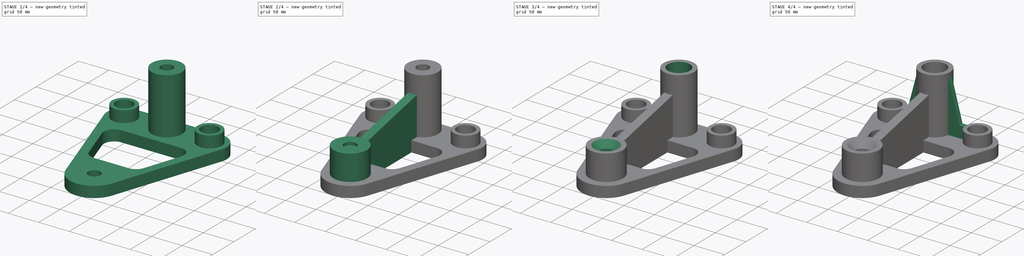
[diagram: build sequence overview — one tinted view per stage of 4, left to right]
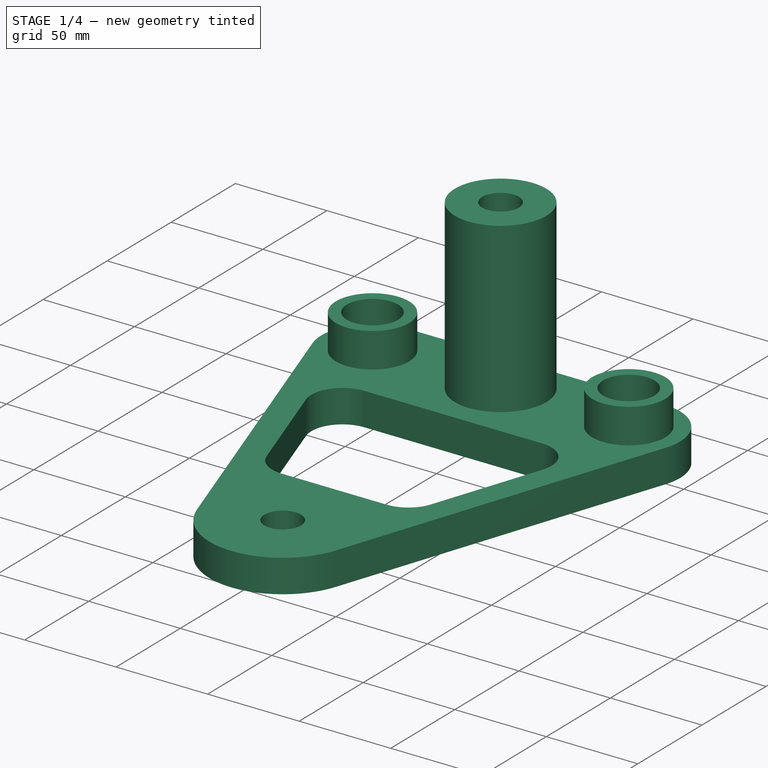
[diagram: stage 1 of 4 — iso view after this stage's code; geometry added in this stage tinted green]
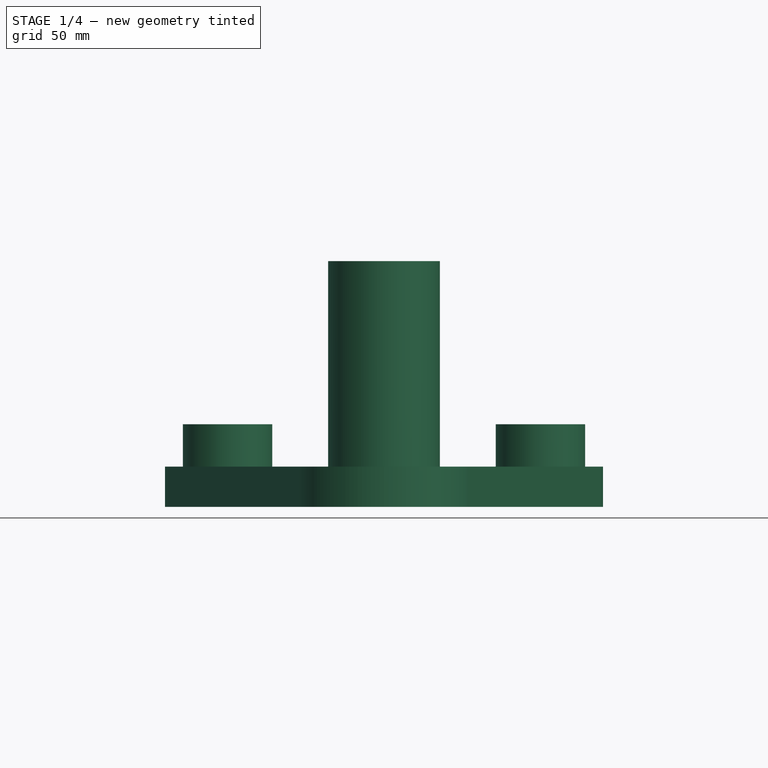
[diagram: stage 1 of 4 — front view after this stage's code; geometry added in this stage tinted green]
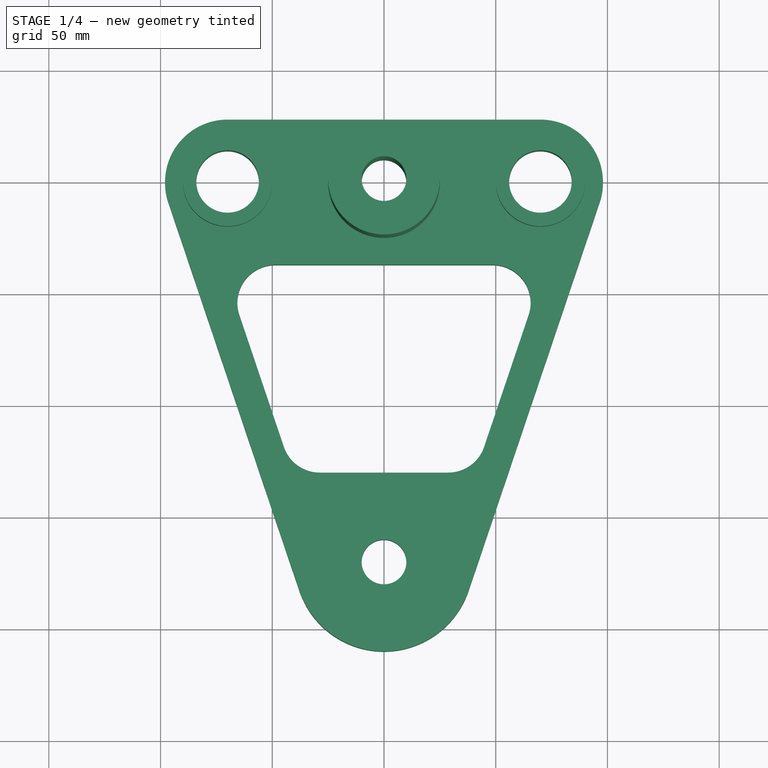
[diagram: stage 1 of 4 — top view after this stage's code; geometry added in this stage tinted green]
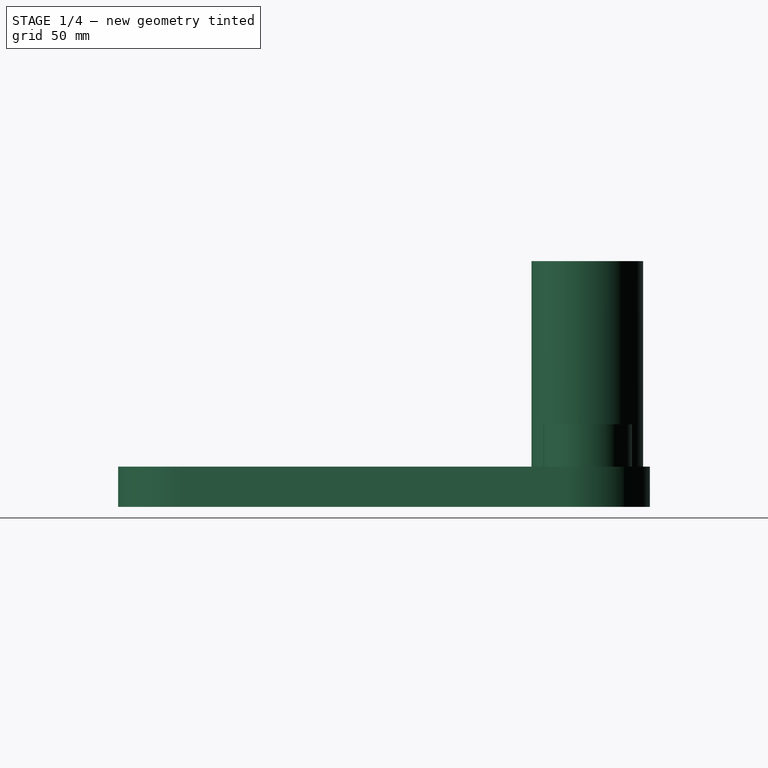
[diagram: stage 1 of 4 — right view after this stage's code; geometry added in this stage tinted green]
FCSTD DOCUMENT  (FreeCAD 1.1R42180 (Git))
Label: 24WC-22-Jack_Bracket
License: Creative Commons Attribution-NonCommercial-ShareAlike 4.0
LicenseURL: https://creativecommons.org/licenses/by-nc-sa/4.0/
objects: PartDesign::Pad×8, Sketcher::SketchObject×6, PartDesign::Hole×2, App::Point×1, PartDesign::Mirrored×1, PartDesign::Body×1, App::TextDocument×1
note: 45 computed .brp shape members not serialized (recipe doc carries the construction recipe); baked Part::Feature solids carry a one-line shape summary decoded from their .brp

FEATURE [App::Point] Origin001  label="Origine"
  Role = Origin
FEATURE [Sketcher::SketchObject] Sketch
  ArcFitTolerance = 1e-06
  AttachmentSupport = -> [Origin]
  ExternalTypes = [0]
  FullyConstrained = true
  MakeInternals = false
  MapMode = 5
  sketch-geometry (18):
    g0: LineSegment StartX=-70 StartY=28 StartZ=0 EndX=70 EndY=28 EndZ=0
    g1: ArcOfCircle CenterX=70 CenterY=3.9e-15 CenterZ=0 NormalX=0 NormalY=0 NormalZ=1 AngleXU=0 Radius=28 StartAngle=5.9579 EndAngle=7.85398
    g2: LineSegment StartX=96.5316 StartY=-8.94832 StartZ=0 EndX=37.9023 EndY=-182.783 EndZ=0
    g3: ArcOfCircle CenterX=-5.2e-15 CenterY=-170 CenterZ=0 NormalX=0 NormalY=0 NormalZ=1 AngleXU=0 Radius=40 StartAngle=3.46688 EndAngle=5.9579
    g4: LineSegment StartX=-37.9023 StartY=-182.783 StartZ=0 EndX=-96.5316 EndY=-8.94832 EndZ=0
    g5: ArcOfCircle CenterX=-70 CenterY=8e-16 CenterZ=0 NormalX=0 NormalY=0 NormalZ=1 AngleXU=0 Radius=28 StartAngle=1.5708 EndAngle=3.46688
    g6: Circle CenterX=-70 CenterY=8e-16 CenterZ=0 NormalX=0 NormalY=0 NormalZ=1 AngleXU=0 Radius=14
    g7: Circle CenterX=70 CenterY=3.9e-15 CenterZ=0 NormalX=0 NormalY=0 NormalZ=1 AngleXU=0 Radius=14
    g8: Circle CenterX=-5.2e-15 CenterY=-170 CenterZ=0 NormalX=0 NormalY=0 NormalZ=1 AngleXU=0 Radius=10
    g9: LineSegment StartX=-48.6214 StartY=-37 StartZ=0 EndX=48.6214 EndY=-37 EndZ=0
    g10: ArcOfCircle CenterX=48.6214 CenterY=-54 CenterZ=0 NormalX=0 NormalY=0 NormalZ=1 AngleXU=0 Radius=17 StartAngle=5.9579 EndAngle=7.85398
    g11: LineSegment StartX=64.7299 StartY=-59.4329 StartZ=0 EndX=44.831 EndY=-118.433 EndZ=0
    g12: LineSegment StartX=-44.831 StartY=-118.433 StartZ=0 EndX=-64.7299 EndY=-59.4329 EndZ=0
    g13: ArcOfCircle CenterX=-48.6214 CenterY=-54 CenterZ=0 NormalX=0 NormalY=0 NormalZ=1 AngleXU=0 Radius=17 StartAngle=1.5708 EndAngle=3.46688
    g14: ArcOfCircle CenterX=-28.7225 CenterY=-113 CenterZ=0 NormalX=0 NormalY=0 NormalZ=1 AngleXU=0 Radius=17 StartAngle=3.46688 EndAngle=4.71239
    g15: LineSegment StartX=-28.7225 StartY=-130 StartZ=0 EndX=28.7225 EndY=-130 EndZ=0
    g16: ArcOfCircle CenterX=28.7225 CenterY=-113 CenterZ=0 NormalX=0 NormalY=0 NormalZ=1 AngleXU=0 Radius=17 StartAngle=4.71239 EndAngle=5.9579
    g17: Circle CenterX=0 CenterY=0 CenterZ=0 NormalX=0 NormalY=0 NormalZ=1 AngleXU=0 Radius=10
  constraints (40):
    c: Horizontal(g0)
    c: Tangent(g0,g1) = 1.5708
    c: Tangent(g1,g2) = 1.5708
    c: Tangent(g2,g3) = 1.5708
    c: Tangent(g3,g4) = 1.5708
    c: Tangent(g4,g5) = 1.5708
    c: Tangent(g5,g0) = 1.5708
    c: Symmetric(g5,g1,g-1)
    c: Radius(g3) = 40
    c: Radius(g1) = 28
    c: Equal(g1,g5)
    c: DistanceX(g5,g1) = 140
    c: DistanceY(g3,g5) = 170
    c: PointOnObject(g3,g-2)
    c: Diameter(g6) = 28
    c: Coincident(g7,g1)
    c: Equal(g6,g7)
    c: Coincident(g8,g3)
    c: Diameter(g8) = 20
    c: Horizontal(g9)
    c: Tangent(g9,g10) = 1.5708
    c: Tangent(g10,g11) = 1.5708
    c: Tangent(g12,g13) = 1.5708
    c: Tangent(g12,g14) = 1.5708
    c: Tangent(g14,g15) = -1.5708
    c: Tangent(g15,g16) = -1.5708
    c: DistanceY(g3,g14) = 40
    c: Horizontal(g15)
    c: DistanceY(g9,g5) = 37
    c: Radius(g13) = 17
    c: Equal(g10,g16)
    c: Tangent(g16,g11) = 1.5708
    c: Tangent(g13,g9) = 1.5708
    c: Parallel(g11,g2)
    c: Distance(g10,g2) = 14
    c: Symmetric(g13,g10,g-2)
    c: Symmetric(g14,g16,g-2)
    c: Coincident(g6,g5)
    c: Diameter(g17) = 20
    c: Coincident(g-1,g17)
FEATURE [PartDesign::Pad] Pad
  Direction = (0,0,1)
  Length = 18
  Length2 = 10
  Profile = -> Sketch
  ReferenceAxis = -> Sketch [N_Axis]
  Refine = true
  Suppressed = false
  Type = 0
FEATURE [Sketcher::SketchObject] Sketch001
  ArcFitTolerance = 1e-06
  AttachmentSupport = -> [Pad]
  ExternalGeometry = -> [Pad]
  ExternalTypes = [0,0,0,0]
  FullyConstrained = true
  MakeInternals = false
  MapMode = 5
  Placement = pos=(0,0,0) rot=(1,0,0;3.14159rad)
  sketch-geometry (4):
    g0: Circle CenterX=0 CenterY=170 CenterZ=0 NormalX=0 NormalY=0 NormalZ=1 AngleXU=0 Radius=27.5
    g1: Circle CenterX=0 CenterY=0 CenterZ=0 NormalX=0 NormalY=0 NormalZ=1 AngleXU=0 Radius=25
    g2: Circle CenterX=-70 CenterY=0 CenterZ=0 NormalX=0 NormalY=0 NormalZ=1 AngleXU=0 Radius=20
    g3: Circle CenterX=70 CenterY=0 CenterZ=0 NormalX=0 NormalY=0 NormalZ=1 AngleXU=0 Radius=20
  constraints (8):
    c: Diameter(g0) = 55
    c: Coincident(g0,g-3)
    c: Diameter(g1) = 50
    c: Coincident(g1,g-1)
    c: Diameter(g2) = 40
    c: Coincident(g2,g-4)
    c: Diameter(g3) = 40
    c: Coincident(g3,g-6)
FEATURE [PartDesign::Pad] Pad001
  BaseFeature = -> Pad
  Direction = (0,0,-1)
  Length = 37
  Length2 = 10
  Profile = -> Sketch001 [Edge3,Edge6,Edge4,Edge8]
  ReferenceAxis = -> Sketch001 [N_Axis]
  Refine = true
  Reversed = true
  Suppressed = false
  Type = 0
FEATURE [PartDesign::Pad] Pad002
  BaseFeature = -> Pad001
  Direction = (0,0,-1)
  Length = 110
  Length2 = 10
  Profile = -> Sketch001 [Edge7,Edge2]
  ReferenceAxis = -> Sketch001 [N_Axis]
  Refine = true
  Reversed = true
  Suppressed = false
  Type = 0
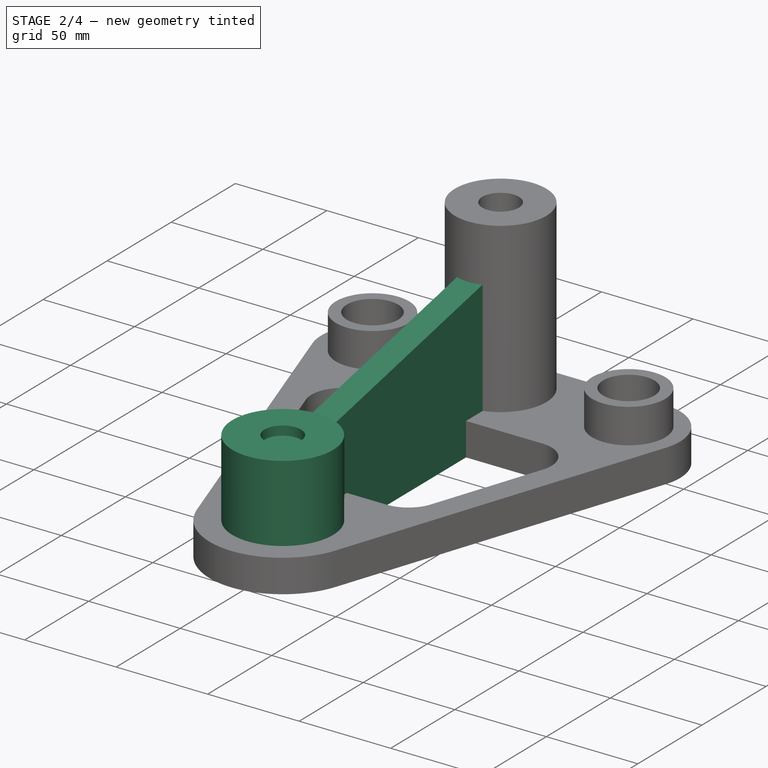
[diagram: stage 2 of 4 — iso view after this stage's code; geometry added in this stage tinted green]
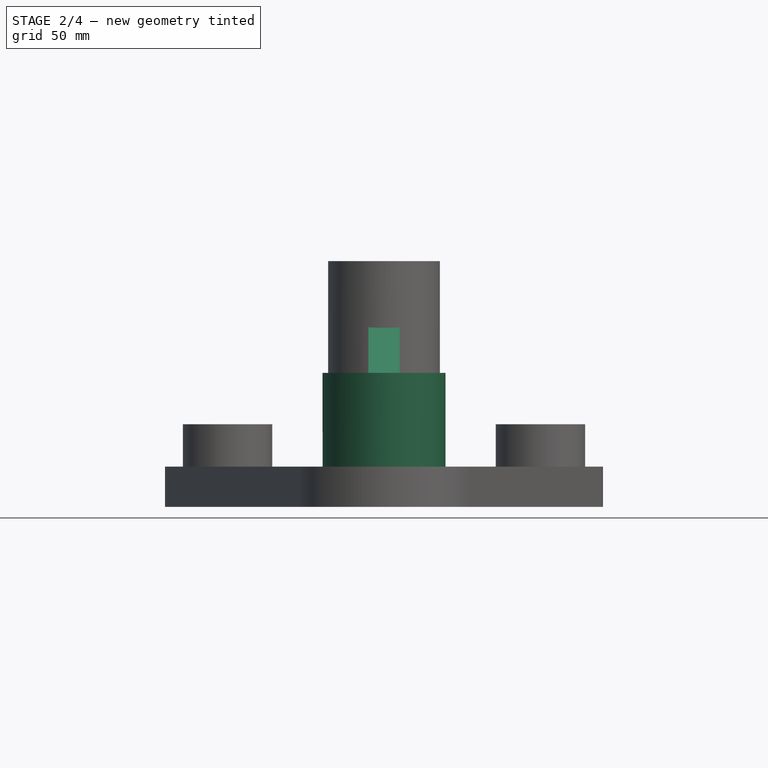
[diagram: stage 2 of 4 — front view after this stage's code; geometry added in this stage tinted green]
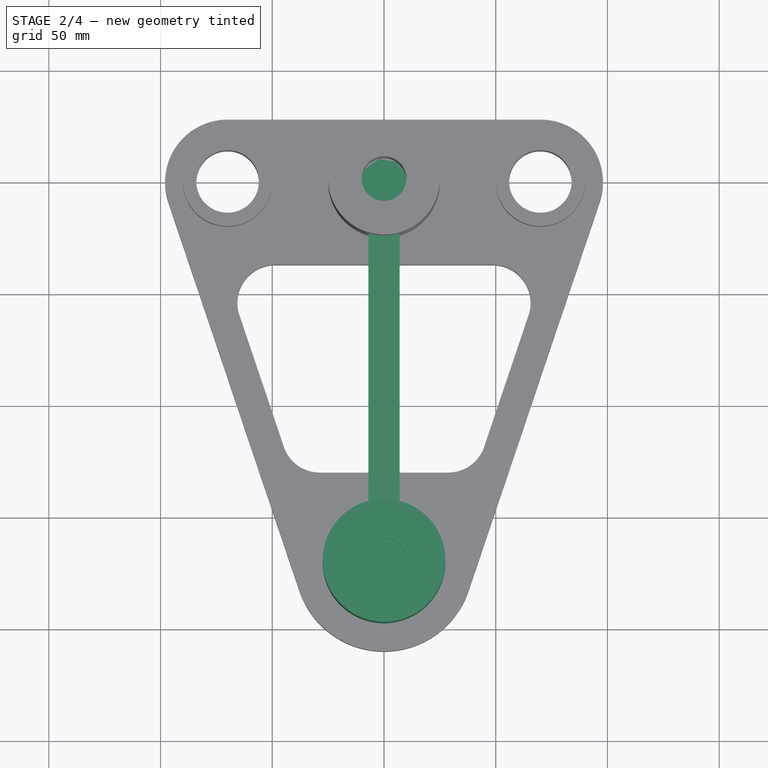
[diagram: stage 2 of 4 — top view after this stage's code; geometry added in this stage tinted green]
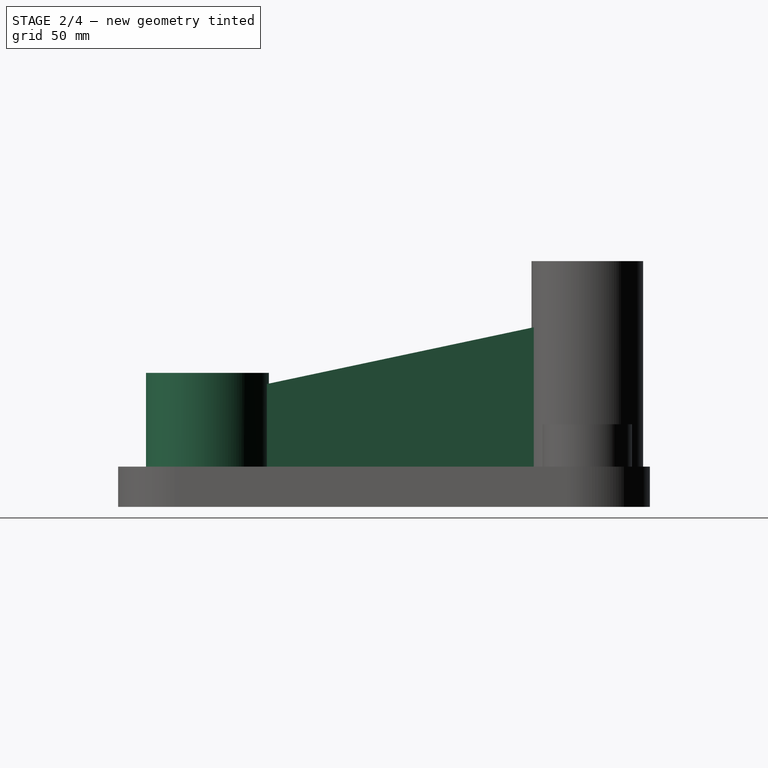
[diagram: stage 2 of 4 — right view after this stage's code; geometry added in this stage tinted green]
FEATURE [PartDesign::Pad] Pad003
  BaseFeature = -> Pad002
  Direction = (0,0,-1)
  Length = 60
  Length2 = 10
  Profile = -> Sketch001 [Edge1,Edge5]
  ReferenceAxis = -> Sketch001 [N_Axis]
  Refine = true
  Reversed = true
  Suppressed = false
  Type = 0
FEATURE [Sketcher::SketchObject] Sketch002
  ArcFitTolerance = 1e-06
  AttachmentSupport = -> [Origin]
  ExternalGeometry = -> [Pad003]
  ExternalTypes = [0,0]
  FullyConstrained = true
  MakeInternals = false
  MapMode = 5
  sketch-geometry (4):
    g0: LineSegment StartX=-7 StartY=-24 StartZ=0 EndX=-7 EndY=-143.406 EndZ=0
    g1: LineSegment StartX=-7 StartY=-143.406 StartZ=0 EndX=7 EndY=-143.406 EndZ=0
    g2: LineSegment StartX=7 StartY=-143.406 StartZ=0 EndX=7 EndY=-24 EndZ=0
    g3: LineSegment StartX=7 StartY=-24 StartZ=0 EndX=-7 EndY=-24 EndZ=0
  constraints (12):
    c: Coincident(g0,g1)
    c: Coincident(g1,g2)
    c: Coincident(g2,g3)
    c: Coincident(g3,g0)
    c: Vertical(g0)
    c: Vertical(g2)
    c: Horizontal(g1)
    c: Horizontal(g3)
    c: PointOnObject(g0,g-3)
    c: PointOnObject(g1,g-4)
    c: Distance(g2,g0) = 14
    c: PointOnObject(g0,g-4)
FEATURE [PartDesign::Pad] Pad004
  BaseFeature = -> Pad003
  Direction = (0,0,1)
  Length = 55
  Length2 = 10
  Profile = -> Sketch002
  ReferenceAxis = -> Sketch002 [N_Axis]
  Refine = true
  Suppressed = false
  Type = 0
FEATURE [Sketcher::SketchObject] Sketch003
  ArcFitTolerance = 1e-06
  AttachmentSupport = -> [Origin]
  ExternalGeometry = -> [Pad004]
  ExternalTypes = [0]
  FullyConstrained = true
  MakeInternals = false
  MapMode = 5
  Placement = pos=(0,0,0) rot=(0.57735,0.57735,0.57735;2.0944rad)
  sketch-geometry (2):
    g0: LineSegment StartX=-143.406 StartY=55 StartZ=0 EndX=-24 EndY=80.3805 EndZ=0
    g1: LineSegment StartX=-24 StartY=80.3805 StartZ=0 EndX=-24 EndY=55 EndZ=0
  constraints (5):
    c: Coincident(g0,g1)
    c: Coincident(g1,g-3)
    c: Vertical(g1)
    c: Coincident(g0,g-3)
    c: Angle(g-3,g0) = 0.20944
FEATURE [PartDesign::Pad] Pad005
  BaseFeature = -> Pad004
  Direction = (1,0,0)
  Length = 14
  Length2 = 10
  Midplane = true
  Profile = -> Sketch003
  ReferenceAxis = -> Sketch003 [N_Axis]
  Refine = true
  Suppressed = false
  Type = 0
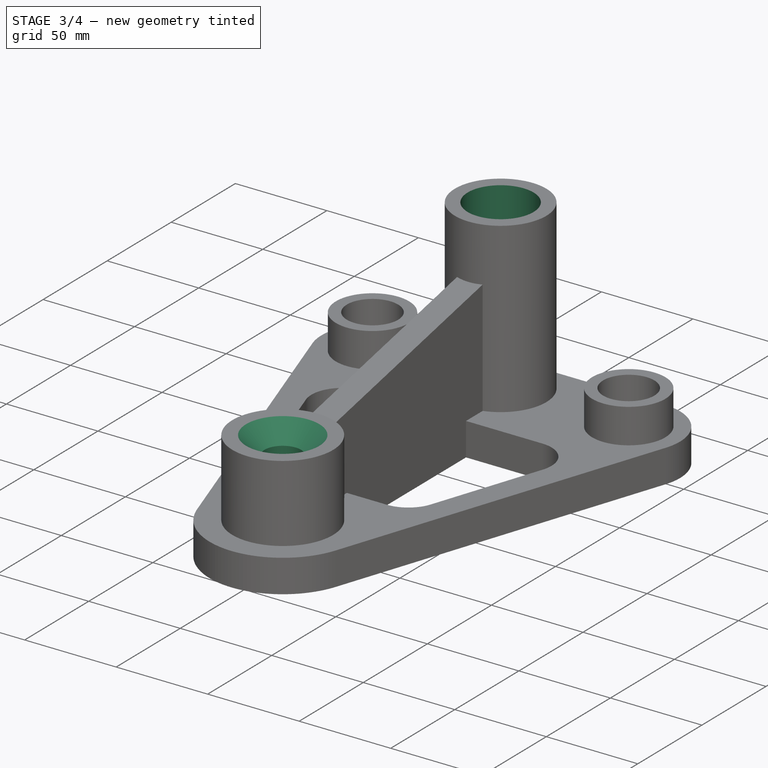
[diagram: stage 3 of 4 — iso view after this stage's code; geometry added in this stage tinted green]
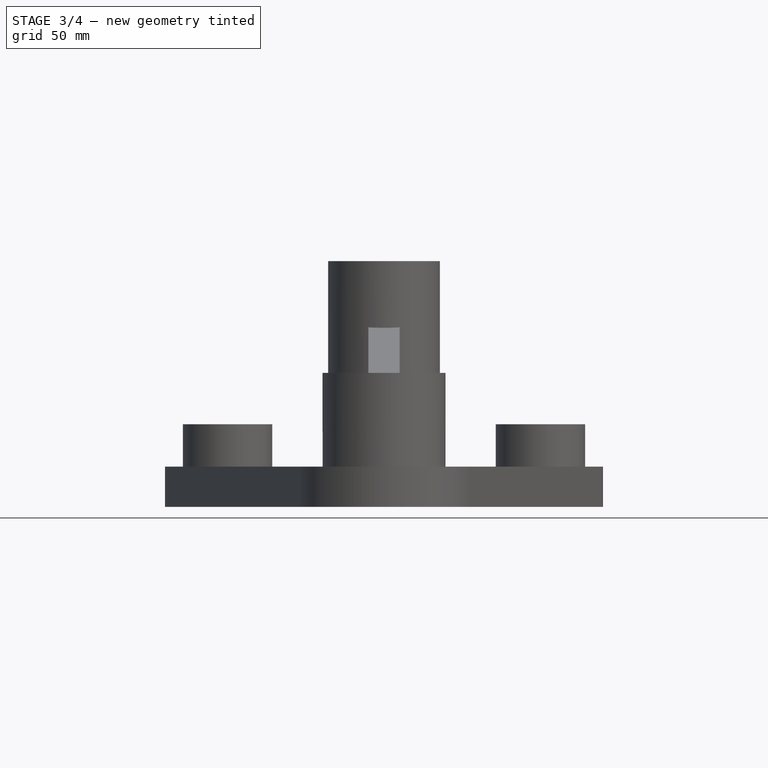
[diagram: stage 3 of 4 — front view after this stage's code; geometry added in this stage tinted green]
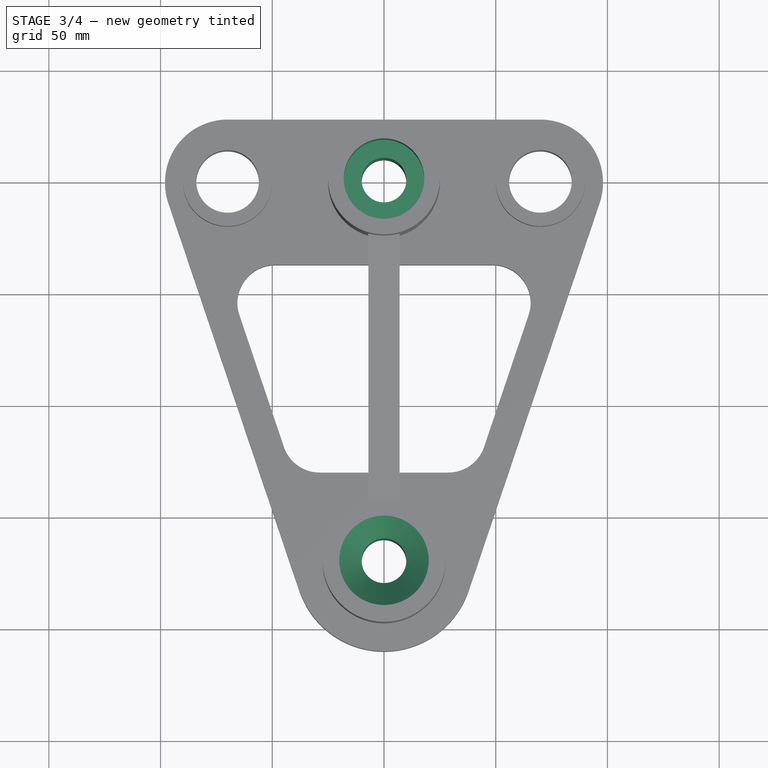
[diagram: stage 3 of 4 — top view after this stage's code; geometry added in this stage tinted green]
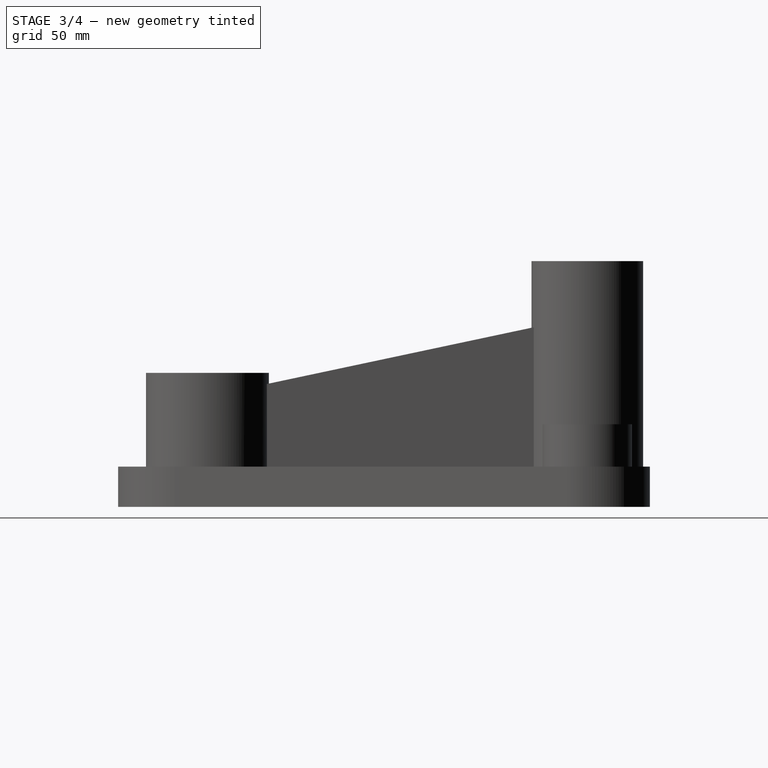
[diagram: stage 3 of 4 — right view after this stage's code; geometry added in this stage tinted green]
FEATURE [PartDesign::Hole] Hole
  BaseFeature = -> Pad005
  BaseProfileType = 7
  CustomThreadClearance = 0
  Depth = 100
  DepthType = 0
  Diameter = 20
  DrillForDepth = false
  DrillPoint = 1
  DrillPointAngle = 118
  HoleCutCountersinkAngle = 90
  HoleCutCustomValues = false
  HoleCutDepth = 20
  HoleCutDiameter = 40
  HoleCutType = 2
  ModelThread = false
  Profile = -> Pad005 [Edge83]
  Refine = true
  Suppressed = false
  Tapered = false
  TaperedAngle = 90
  ThreadClass = 0
  ThreadDepth = 100
  ThreadDepthType = 0
  ThreadDiameter = 20
  ThreadDirection = 0
  ThreadFit = 0
  ThreadSize = 0
  ThreadType = 0
  Threaded = false
  UseCustomThreadClearance = false
FEATURE [PartDesign::Hole] Hole001
  BaseFeature = -> Hole
  BaseProfileType = 7
  CustomThreadClearance = 0
  Depth = 200
  DepthType = 0
  Diameter = 20
  DrillForDepth = false
  DrillPoint = 1
  DrillPointAngle = 118
  HoleCutCountersinkAngle = 90
  HoleCutCustomValues = false
  HoleCutDepth = 38
  HoleCutDiameter = 36
  HoleCutType = 1
  ModelThread = false
  Profile = -> Hole [Edge84]
  Refine = true
  Suppressed = false
  Tapered = false
  TaperedAngle = 90
  ThreadClass = 0
  ThreadDepth = 200
  ThreadDepthType = 0
  ThreadDiameter = 20
  ThreadDirection = 0
  ThreadFit = 0
  ThreadSize = 0
  ThreadType = 0
  Threaded = false
  UseCustomThreadClearance = false
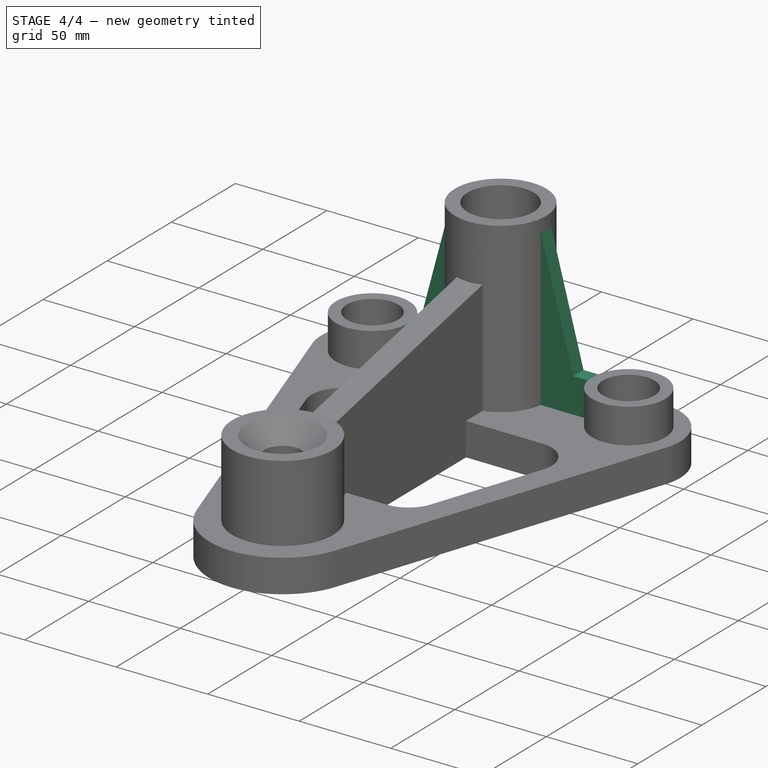
[diagram: stage 4 of 4 — iso view after this stage's code; geometry added in this stage tinted green]
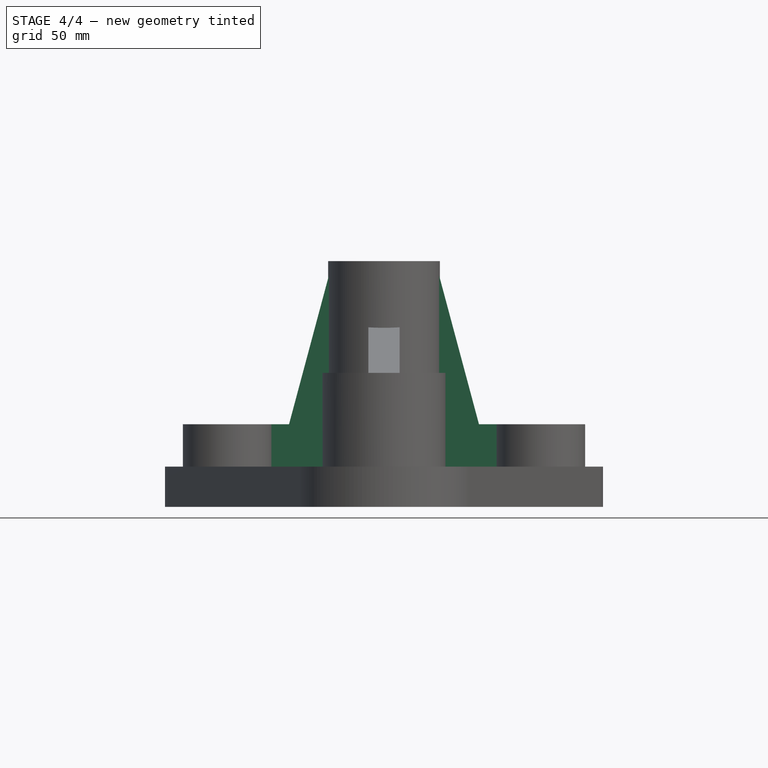
[diagram: stage 4 of 4 — front view after this stage's code; geometry added in this stage tinted green]
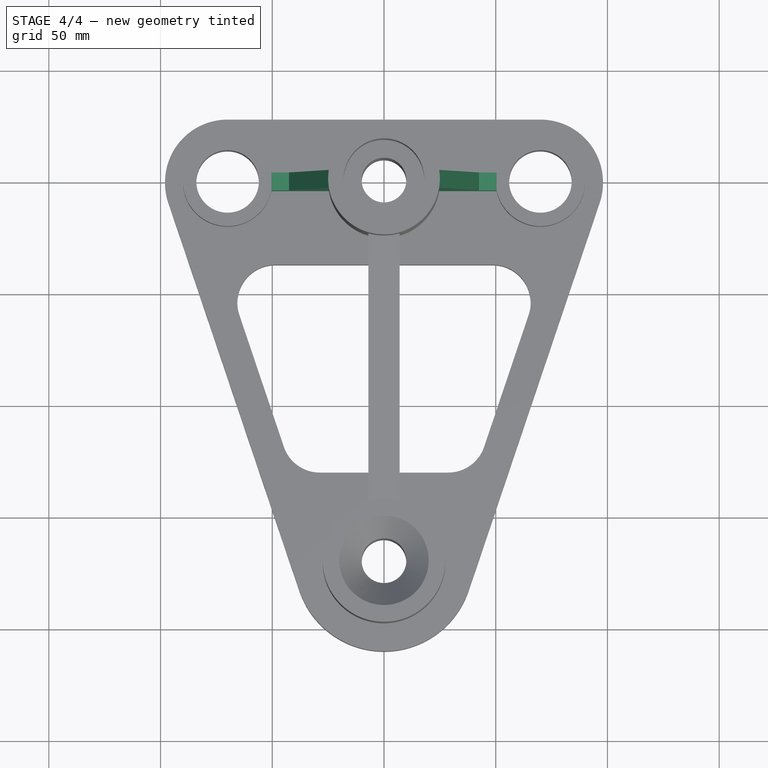
[diagram: stage 4 of 4 — top view after this stage's code; geometry added in this stage tinted green]
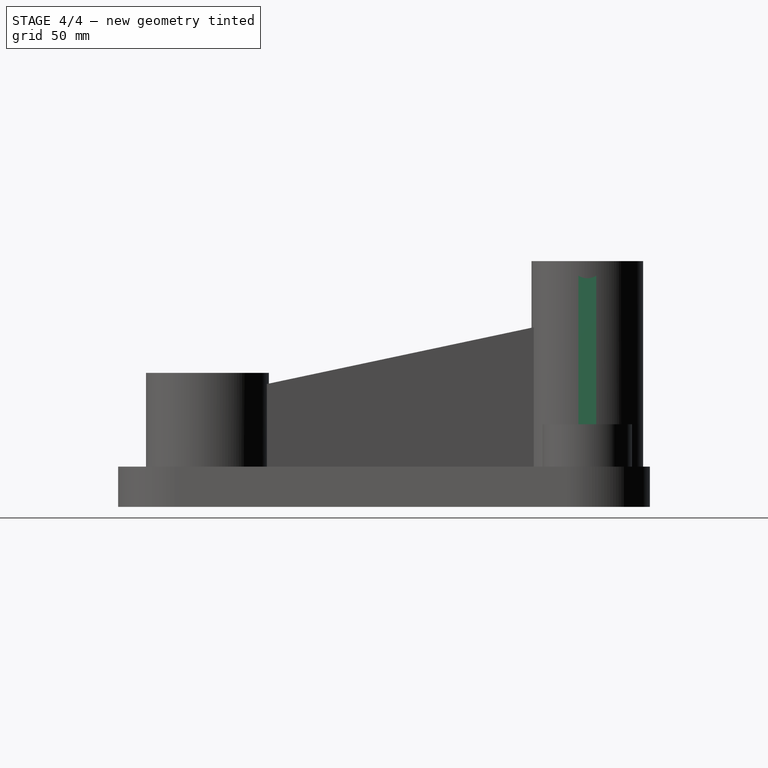
[diagram: stage 4 of 4 — right view after this stage's code; geometry added in this stage tinted green]
FEATURE [Sketcher::SketchObject] Sketch004
  ArcFitTolerance = 1e-06
  AttachmentSupport = -> [Hole001]
  ExternalGeometry = -> [Hole001,Sketch002]
  ExternalTypes = [0,0,0]
  FullyConstrained = false
  MakeInternals = false
  MapMode = 5
  Placement = pos=(0,0,18) rot=(0,0,1;0rad)
  sketch-geometry (8):
    g0: LineSegment StartX=-50.4041 StartY=4 StartZ=0 EndX=-50.4041 EndY=-4 EndZ=0
    g1: LineSegment StartX=-50.4041 StartY=-4 StartZ=0 EndX=-24.6779 EndY=-4 EndZ=0
    g2: LineSegment StartX=-24.6779 StartY=-4 StartZ=0 EndX=-24.6779 EndY=4 EndZ=0
    g3: LineSegment StartX=-24.6779 StartY=4 StartZ=0 EndX=-50.4041 EndY=4 EndZ=0
    g4: LineSegment StartX=24.6779 StartY=4 StartZ=0 EndX=24.6779 EndY=-4 EndZ=0
    g5: LineSegment StartX=24.6779 StartY=-4 StartZ=0 EndX=50.4041 EndY=-4 EndZ=0
    g6: LineSegment StartX=50.4041 StartY=-4 StartZ=0 EndX=50.4041 EndY=4 EndZ=0
    g7: LineSegment StartX=50.4041 StartY=4 StartZ=0 EndX=24.6779 EndY=4 EndZ=0
  constraints (19):
    c: Coincident(g0,g1)
    c: Coincident(g1,g2)
    c: Coincident(g2,g3)
    c: Coincident(g3,g0)
    c: Vertical(g0)
    c: Vertical(g2)
    c: Horizontal(g1)
    c: Horizontal(g3)
    c: PointOnObject(g0,g-4)
    c: Coincident(g5,g6)
    c: Coincident(g6,g7)
    c: Coincident(g7,g4)
    c: Vertical(g4)
    c: Vertical(g6)
    c: Horizontal(g5)
    c: Horizontal(g7)
    c: PointOnObject(g5,g-3)
    c: DistanceY(g2,g2) = 8
    c: Equal(g4,g2)
FEATURE [PartDesign::Pad] Pad006
  BaseFeature = -> Hole001
  Direction = (0,0,1)
  Length = 10
  Length2 = 10
  Profile = -> Sketch004
  ReferenceAxis = -> Sketch004 [N_Axis]
  Refine = true
  Suppressed = false
  Type = 3
  UpToFace = -> Hole001 [Face32]
FEATURE [Sketcher::SketchObject] Sketch006
  ArcFitTolerance = 1e-06
  AttachmentSupport = -> [Origin]
  ExternalGeometry = -> [Pad006]
  ExternalTypes = [0,0,0]
  FullyConstrained = true
  MakeInternals = false
  MapMode = 5
  Placement = pos=(0,0,0) rot=(1,0,0;1.5708rad)
  expr: Constraints[6] = 30 / 2
  expr: Constraints[7] = 85 / 2
  sketch-geometry (3):
    g0: LineSegment StartX=42.5 StartY=37 StartZ=0 EndX=23.5 EndY=37 EndZ=0
    g1: LineSegment StartX=23.5 StartY=37 StartZ=0 EndX=23.5 EndY=107.909 EndZ=0
    g2: LineSegment StartX=23.5 StartY=107.909 StartZ=0 EndX=42.5 EndY=37 EndZ=0
  constraints (9):
    c: PointOnObject(g0,g-3)
    c: Horizontal(g0)
    c: Coincident(g0,g1)
    c: Vertical(g1)
    c: Coincident(g1,g2)
    c: Coincident(g2,g0)
    c: Angle(g-2,g2) = 0.261799
    c: Distance(g0,g-2) = 42.5
    c: DistanceX(g1,g-4) = 1.5
FEATURE [PartDesign::Pad] Pad007
  BaseFeature = -> Pad006
  Direction = (0,-1,0)
  Length = 8
  Length2 = 10
  Midplane = true
  Profile = -> Sketch006
  ReferenceAxis = -> Sketch006 [N_Axis]
  Refine = true
  Suppressed = false
  Type = 0
FEATURE [PartDesign::Mirrored] Mirrored
  BaseFeature = -> Pad007
  MirrorPlane = -> Sketch006 [V_Axis]
  Originals = -> [Pad007]
  Refine = true
  Suppressed = false
  TransformMode = 0
FEATURE [PartDesign::Body] Body
  AllowCompound = true
  Group = -> [Sketch,Pad,Sketch001,Pad001,Pad002,Pad003,Sketch002,Pad004,Sketch003,Pad005,Hole,Hole001,Sketch004,Pad006,Sketch006,Pad007,Mirrored]
  Origin = -> Origin
  Tip = -> Mirrored
FEATURE [App::TextDocument] Text_document  label="README"
  Text = https://www.youtube.com/watch?v=Od6GBBGYmXc\n\n2700 kg/m3\n\n1 913,8g GOOD
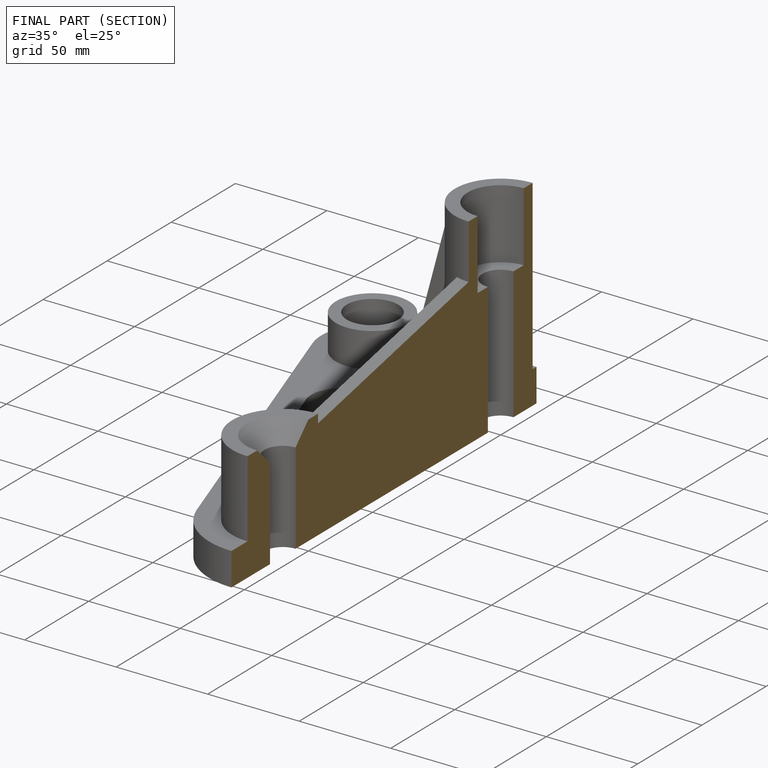
[diagram: finished part — half-section view (interior)]
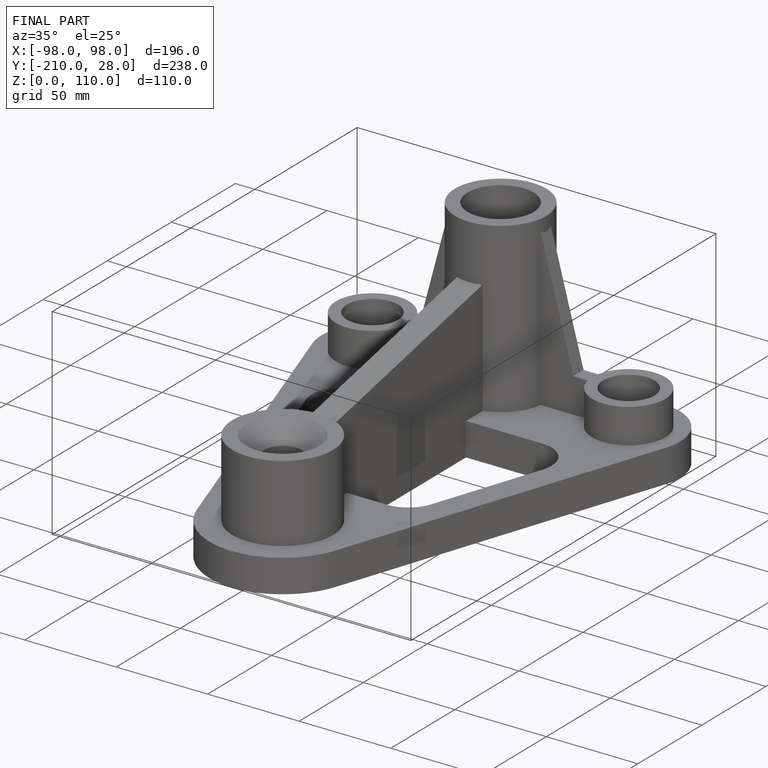
[diagram: finished part — iso view with bounding-box wireframe]
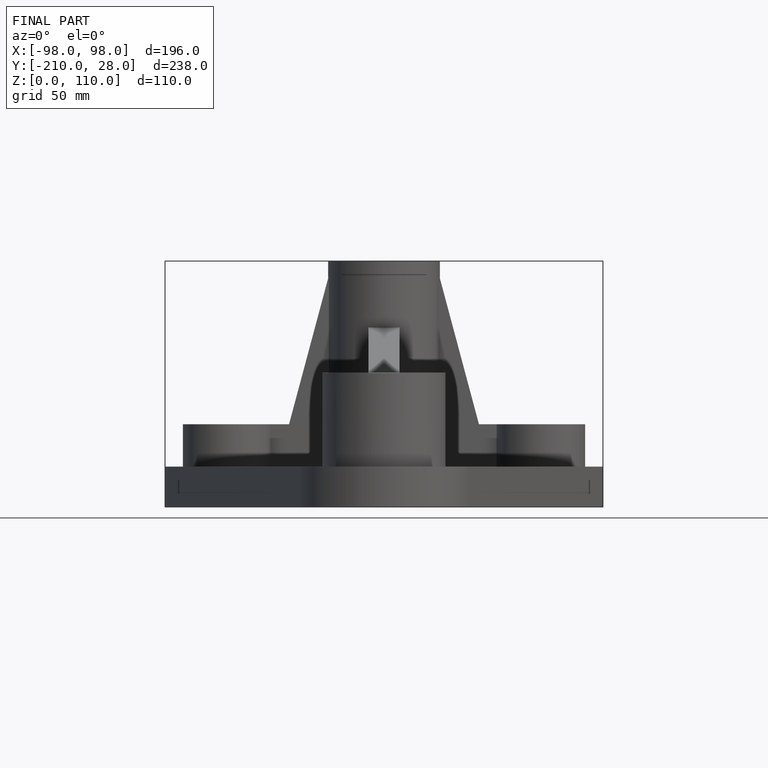
[diagram: finished part — front view with bounding-box wireframe]
